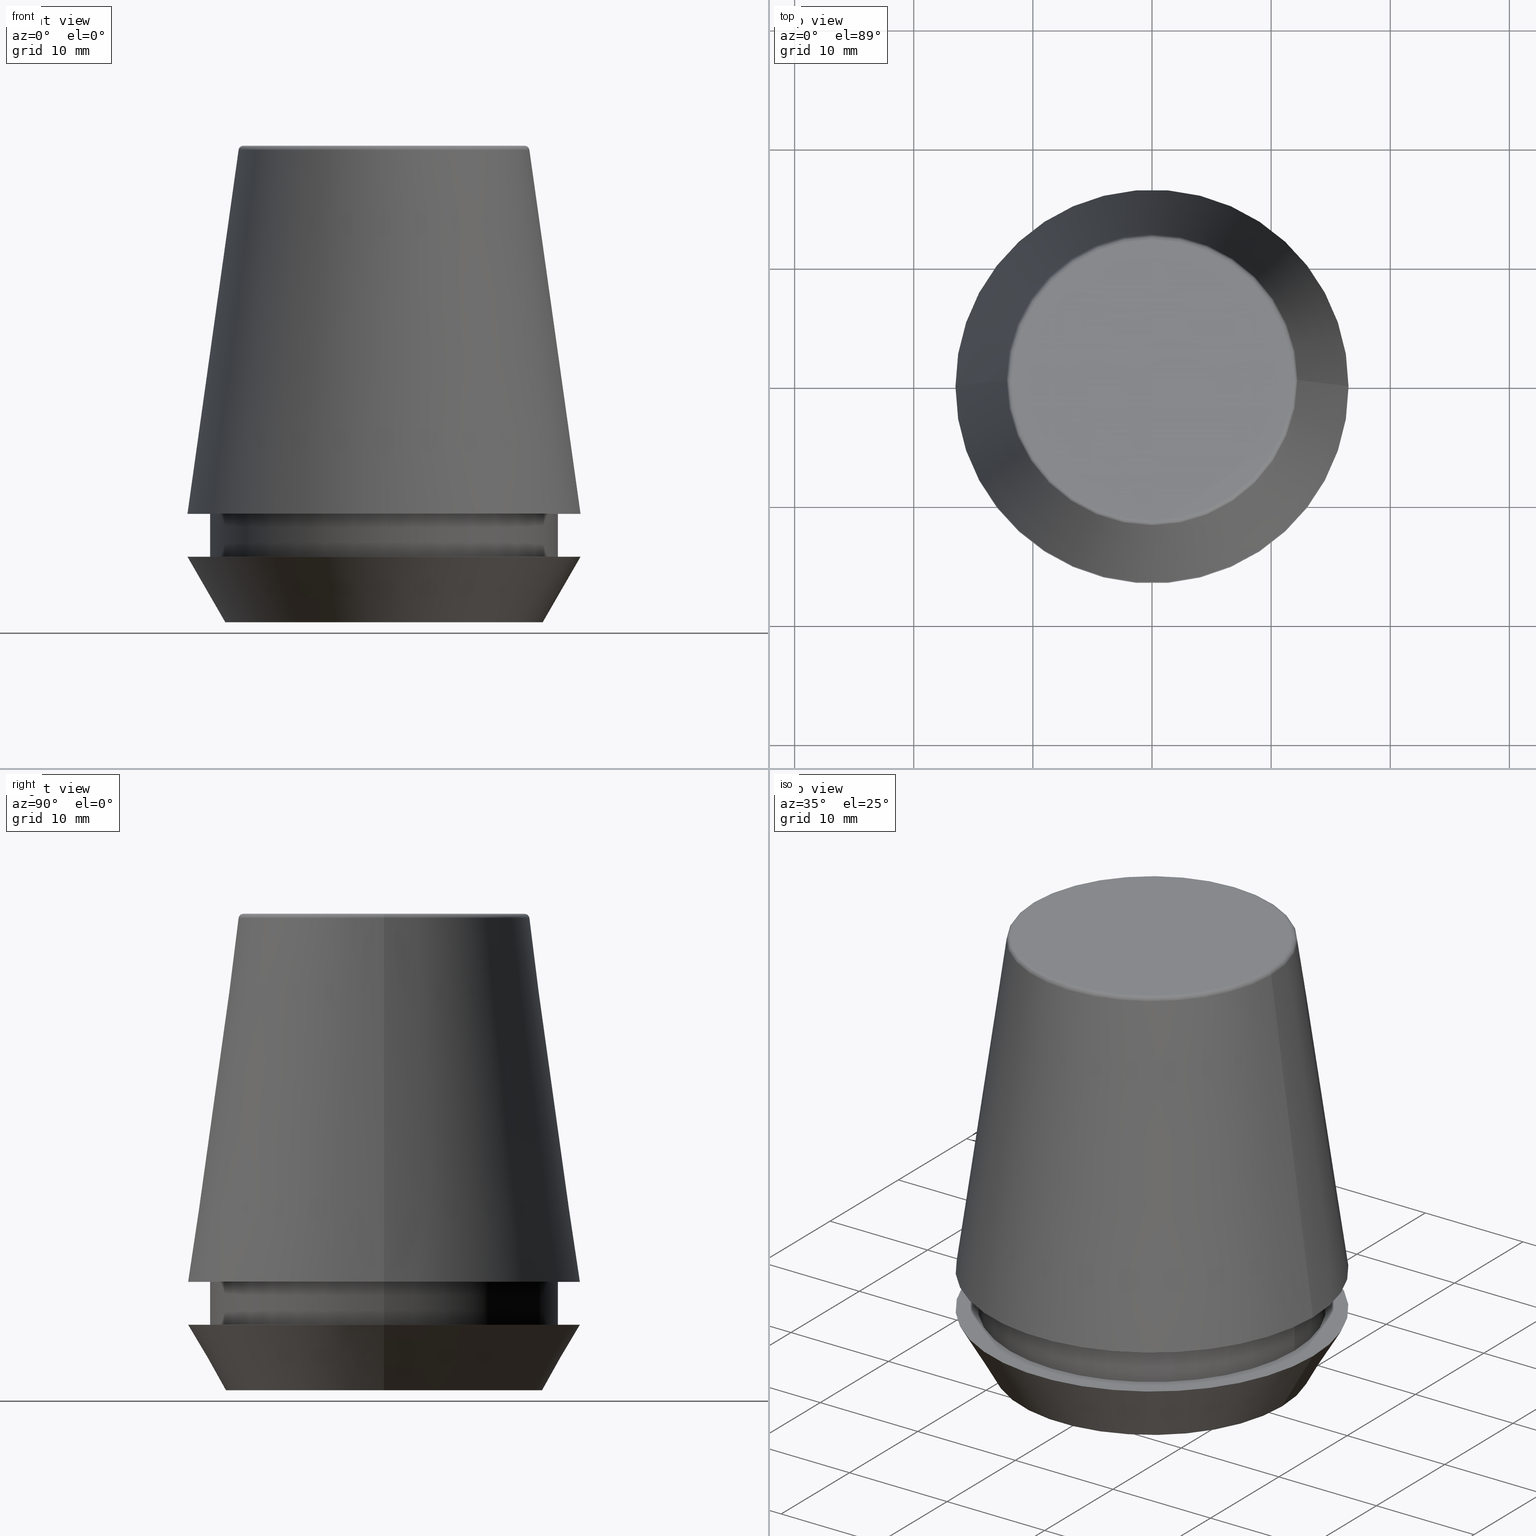
[diagram: canonical four-view strip — front | top / right | iso, engineering-drawing reading convention]
A machine part, canonical four-view strip (front | top / right | iso — engineering-drawing reading convention). The complete STEP part file that produces these views, byte-faithful:
ISO-10303-21;
HEADER;
FILE_DESCRIPTION (( 'STEP AP203' ),
    '1' );
FILE_NAME ('TAP COLLET ER 32G  12.0 X 9.0.STEP',
    '2019-04-09T11:19:56',
    ( '' ),
    ( '' ),
    'SwSTEP 2.0',
    'SolidWorks 2014',
    '' );
FILE_SCHEMA (( 'CONFIG_CONTROL_DESIGN' ));
ENDSEC;

DATA;
#1 = AXIS2_PLACEMENT_3D ( 'NONE', #131, #44, #15 ) ;
#2 = ORIENTED_EDGE ( 'NONE', *, *, #175, .F. ) ;
#3 = DIRECTION ( 'NONE',  ( 1.000000000000000000, 0.0000000000000000000, 0.0000000000000000000 ) ) ;
#4 = DIRECTION ( 'NONE',  ( 1.000000000000000000, 0.0000000000000000000, 0.0000000000000000000 ) ) ;
#5 = TOROIDAL_SURFACE ( 'NONE', #185, 11.80989888411031400, 0.4000000000000026900 ) ;
#6 = DIRECTION ( 'NONE',  ( -1.000000000000000000, 0.0000000000000000000, 0.0000000000000000000 ) ) ;
#7 = ORIENTED_EDGE ( 'NONE', *, *, #155, .T. ) ;
#8 = PERSON_AND_ORGANIZATION ( #40, #190 ) ;
#9 = CONICAL_SURFACE ( 'NONE', #17, 13.32457351945710200, 0.5235987755982927100 ) ;
#10 = DIRECTION ( 'NONE',  ( -0.0000000000000000000, -0.0000000000000000000, 1.000000000000000000 ) ) ;
#11 = ORIENTED_EDGE ( 'NONE', *, *, #55, .T. ) ;
#12 = ADVANCED_FACE ( 'NONE', ( #13 ), #338, .T. ) ;
#13 = FACE_OUTER_BOUND ( 'NONE', #289, .T. ) ;
#14 = CARTESIAN_POINT ( 'NONE',  ( 0.0000000000000000000, 0.0000000000000000000, 0.0000000000000000000 ) ) ;
#15 = DIRECTION ( 'NONE',  ( 1.000000000000000000, 0.0000000000000000000, 0.0000000000000000000 ) ) ;
#16 = DIRECTION ( 'NONE',  ( 0.0000000000000000000, 0.0000000000000000000, 1.000000000000000000 ) ) ;
#17 = AXIS2_PLACEMENT_3D ( 'NONE', #135, #316, #104 ) ;
#18 = PERSON_AND_ORGANIZATION_ROLE ( 'creator' ) ;
#19 = EDGE_CURVE ( 'NONE', #315, #97, #305, .T. ) ;
#20 = ORIENTED_EDGE ( 'NONE', *, *, #64, .T. ) ;
#21 = LINE ( 'NONE', #283, #181 ) ;
#22 = VERTEX_POINT ( 'NONE', #110 ) ;
#23 = CALENDAR_DATE ( 2019, 9, 4 ) ;
#24 = DIRECTION ( 'NONE',  ( -0.0000000000000000000, -0.0000000000000000000, 1.000000000000000000 ) ) ;
#25 = PLANE ( 'NONE',  #243 ) ;
#26 = CARTESIAN_POINT ( 'NONE',  ( 0.0000000000000000000, 0.0000000000000000000, 9.099999999999997900 ) ) ;
#27 = AXIS2_PLACEMENT_3D ( 'NONE', #286, #107, #6 ) ;
#28 = DIRECTION ( 'NONE',  ( 0.0000000000000000000, -0.0000000000000000000, 1.000000000000000000 ) ) ;
#29 = EDGE_LOOP ( 'NONE', ( #41, #351, #336, #356 ) ) ;
#30 = FACE_OUTER_BOUND ( 'NONE', #103, .T. ) ;
#31 = DIRECTION ( 'NONE',  ( 0.0000000000000000000, 0.0000000000000000000, -1.000000000000000000 ) ) ;
#32 = CIRCLE ( 'NONE', #194, 14.60000000000000000 ) ;
#33 = EDGE_CURVE ( 'NONE', #221, #170, #21, .T. ) ;
#34 = ORIENTED_EDGE ( 'NONE', *, *, #192, .F. ) ;
#35 = CC_DESIGN_PERSON_AND_ORGANIZATION_ASSIGNMENT ( #101, #179, ( #85 ) ) ;
#36 = DIRECTION ( 'NONE',  ( -0.0000000000000000000, -0.0000000000000000000, 1.000000000000000000 ) ) ;
#37 = CARTESIAN_POINT ( 'NONE',  ( -16.50000000000000000, 2.020667218593133100E-015, 5.500000000000005300 ) ) ;
#38 = DESIGN_CONTEXT ( 'detailed design', #112, 'design' ) ;
#39 = CONICAL_SURFACE ( 'NONE', #236, 13.32457351945710200, 0.5235987755982927100 ) ;
#40 = PERSON ( 'UNSPECIFIED', 'UNSPECIFIED', 'UNSPECIFIED', ('UNSPECIFIED'), ('UNSPECIFIED'), ('UNSPECIFIED') ) ;
#41 = ORIENTED_EDGE ( 'NONE', *, *, #186, .F. ) ;
#42 = ADVANCED_FACE ( 'NONE', ( #363 ), #9, .T. ) ;
#43 = EDGE_CURVE ( 'NONE', #221, #229, #32, .T. ) ;
#44 = DIRECTION ( 'NONE',  ( -0.0000000000000000000, -0.0000000000000000000, 1.000000000000000000 ) ) ;
#45 = EDGE_CURVE ( 'NONE', #319, #276, #365, .T. ) ;
#46 = ORIENTED_EDGE ( 'NONE', *, *, #277, .T. ) ;
#47 = PERSON_AND_ORGANIZATION_ROLE ( 'design_supplier' ) ;
#48 = FACE_OUTER_BOUND ( 'NONE', #98, .T. ) ;
#49 = CC_DESIGN_PERSON_AND_ORGANIZATION_ASSIGNMENT ( #141, #294, ( #237 ) ) ;
#50 = CALENDAR_DATE ( 2019, 9, 4 ) ;
#51 = CARTESIAN_POINT ( 'NONE',  ( 11.80989888411031400, 0.0000000000000000000, 40.00000000000000700 ) ) ;
#52 = ORIENTED_EDGE ( 'NONE', *, *, #45, .T. ) ;
#53 = DIRECTION ( 'NONE',  ( -0.0000000000000000000, -0.0000000000000000000, 1.000000000000000000 ) ) ;
#54 = DIRECTION ( 'NONE',  ( 1.000000000000000000, 0.0000000000000000000, 0.0000000000000000000 ) ) ;
#55 = EDGE_CURVE ( 'NONE', #315, #387, #287, .T. ) ;
#56 = CARTESIAN_POINT ( 'NONE',  ( 0.0000000000000000000, 16.50032537154048700, 9.099999999999999600 ) ) ;
#57 = CC_DESIGN_DATE_AND_TIME_ASSIGNMENT ( #284, #267, ( #74 ) ) ;
#58 = CARTESIAN_POINT ( 'NONE',  ( 16.50032537154048700, 2.020707065114692300E-015, 9.099999999999997900 ) ) ;
#59 = VECTOR ( 'NONE', #84, 999.9999999999998900 ) ;
#60 = PERSON_AND_ORGANIZATION ( #40, #190 ) ;
#61 = DIRECTION ( 'NONE',  ( 1.000000000000000000, 0.0000000000000000000, 0.0000000000000000000 ) ) ;
#62 = ADVANCED_BREP_SHAPE_REPRESENTATION ( 'TAP COLLET ER 32G  12.0 X 9.0', ( #156, #108 ), #357 ) ;
#63 = FACE_OUTER_BOUND ( 'NONE', #383, .T. ) ;
#64 = EDGE_CURVE ( 'NONE', #76, #273, #360, .T. ) ;
#65 = CARTESIAN_POINT ( 'NONE',  ( 0.0000000000000000000, 0.0000000000000000000, 5.500000000000005300 ) ) ;
#66 = ORIENTED_EDGE ( 'NONE', *, *, #374, .F. ) ;
#67 = EDGE_LOOP ( 'NONE', ( #216, #344 ) ) ;
#68 = CARTESIAN_POINT ( 'NONE',  ( 11.80989888411031400, 0.0000000000000000000, 39.60000000000000100 ) ) ;
#69 = EDGE_CURVE ( 'NONE', #170, #22, #349, .T. ) ;
#70 = CARTESIAN_POINT ( 'NONE',  ( -11.80989888411031400, 1.446295486667959300E-015, 39.60000000000000100 ) ) ;
#71 = CYLINDRICAL_SURFACE ( 'NONE', #222, 14.60000000000000000 ) ;
#72 = ADVANCED_FACE ( 'NONE', ( #30 ), #71, .T. ) ;
#73 = DIRECTION ( 'NONE',  ( -0.0000000000000000000, -0.0000000000000000000, 1.000000000000000000 ) ) ;
#74 = SECURITY_CLASSIFICATION ( '', '', #80 ) ;
#75 = FACE_OUTER_BOUND ( 'NONE', #257, .T. ) ;
#76 = VERTEX_POINT ( 'NONE', #331 ) ;
#77 = ORIENTED_EDGE ( 'NONE', *, *, #155, .F. ) ;
#78 = DIRECTION ( 'NONE',  ( 1.000000000000000000, 0.0000000000000000000, 0.0000000000000000000 ) ) ;
#79 = AXIS2_PLACEMENT_3D ( 'NONE', #14, #73, #324 ) ;
#80 = SECURITY_CLASSIFICATION_LEVEL ( 'unclassified' ) ;
#81 = LINE ( 'NONE', #122, #376 ) ;
#82 = ORIENTED_EDGE ( 'NONE', *, *, #43, .T. ) ;
#83 = PERSON_AND_ORGANIZATION ( #40, #190 ) ;
#84 = DIRECTION ( 'NONE',  ( -0.4999999999999947300, 6.123233995736700700E-017, 0.8660254037844418200 ) ) ;
#85 = PRODUCT_DEFINITION ( 'UNKNOWN', '', #231, #38 ) ;
#86 = CALENDAR_DATE ( 2019, 9, 4 ) ;
#87 = DIRECTION ( 'NONE',  ( 0.0000000000000000000, 0.0000000000000000000, -1.000000000000000000 ) ) ;
#88 = FACE_OUTER_BOUND ( 'NONE', #29, .T. ) ;
#89 = DIRECTION ( 'NONE',  ( 0.0000000000000000000, -0.0000000000000000000, 1.000000000000000000 ) ) ;
#90 = AXIS2_PLACEMENT_3D ( 'NONE', #264, #205, #350 ) ;
#91 = EDGE_CURVE ( 'NONE', #387, #273, #81, .T. ) ;
#92 = PRODUCT_RELATED_PRODUCT_CATEGORY ( 'detail', '', ( #237 ) ) ;
#93 = DIRECTION ( 'NONE',  ( -1.000000000000000000, 0.0000000000000000000, 0.0000000000000000000 ) ) ;
#94 = ORIENTED_EDGE ( 'NONE', *, *, #69, .T. ) ;
#95 = DATE_AND_TIME ( #50, #146 ) ;
#96 = FACE_OUTER_BOUND ( 'NONE', #67, .T. ) ;
#97 = VERTEX_POINT ( 'NONE', #153 ) ;
#98 = EDGE_LOOP ( 'NONE', ( #129, #301 ) ) ;
#99 = EDGE_CURVE ( 'NONE', #22, #170, #254, .T. ) ;
#100 = DIRECTION ( 'NONE',  ( 1.000000000000000000, 0.0000000000000000000, 0.0000000000000000000 ) ) ;
#101 = PERSON_AND_ORGANIZATION ( #40, #190 ) ;
#102 = CONICAL_SURFACE ( 'NONE', #300, 16.50032537154048700, 0.1396263401595395900 ) ;
#103 = EDGE_LOOP ( 'NONE', ( #82, #143, #242, #215 ) ) ;
#104 = DIRECTION ( 'NONE',  ( 1.000000000000000000, 0.0000000000000000000, 0.0000000000000000000 ) ) ;
#105 = CARTESIAN_POINT ( 'NONE',  ( 14.60000000000000000, 0.0000000000000000000, 9.099999999999997900 ) ) ;
#106 = PERSON_AND_ORGANIZATION ( #40, #190 ) ;
#107 = DIRECTION ( 'NONE',  ( 0.0000000000000000000, 0.0000000000000000000, -1.000000000000000000 ) ) ;
#108 = AXIS2_PLACEMENT_3D ( 'NONE', #368, #16, #78 ) ;
#109 = FACE_OUTER_BOUND ( 'NONE', #262, .T. ) ;
#110 = CARTESIAN_POINT ( 'NONE',  ( -14.60000000000000000, 1.787984326755135800E-015, 9.099999999999997900 ) ) ;
#111 = CARTESIAN_POINT ( 'NONE',  ( -12.20600611160694300, 0.0000000000000000000, 39.65566924038402900 ) ) ;
#112 = APPLICATION_CONTEXT ( 'configuration controlled 3d designs of mechanical parts and assemblies' ) ;
#113 = CYLINDRICAL_SURFACE ( 'NONE', #328, 14.60000000000000000 ) ;
#114 = APPROVAL_STATUS ( 'not_yet_approved' ) ;
#115 = ORIENTED_EDGE ( 'NONE', *, *, #33, .T. ) ;
#116 = PERSON_AND_ORGANIZATION ( #40, #190 ) ;
#117 = DATE_AND_TIME ( #245, #278 ) ;
#118 = CARTESIAN_POINT ( 'NONE',  ( 14.60000000000000000, 0.0000000000000000000, 5.500000000000005300 ) ) ;
#119 = ORIENTED_EDGE ( 'NONE', *, *, #277, .F. ) ;
#120 = ORIENTED_EDGE ( 'NONE', *, *, #186, .T. ) ;
#121 = DIRECTION ( 'NONE',  ( -0.0000000000000000000, -0.0000000000000000000, 1.000000000000000000 ) ) ;
#122 = CARTESIAN_POINT ( 'NONE',  ( 16.50032537154048700, 2.020707065114692300E-015, 9.099999999999997900 ) ) ;
#123 = VERTEX_POINT ( 'NONE', #51 ) ;
#124 = EDGE_LOOP ( 'NONE', ( #147, #11, #46, #2 ) ) ;
#125 = CIRCLE ( 'NONE', #199, 11.80989888411031400 ) ;
#126 = DIRECTION ( 'NONE',  ( 1.000000000000000000, 0.0000000000000000000, 0.0000000000000000000 ) ) ;
#127 = FACE_OUTER_BOUND ( 'NONE', #341, .T. ) ;
#128 = APPROVAL_DATE_TIME ( #117, #149 ) ;
#129 = ORIENTED_EDGE ( 'NONE', *, *, #45, .F. ) ;
#130 = EDGE_CURVE ( 'NONE', #229, #221, #223, .T. ) ;
#131 = CARTESIAN_POINT ( 'NONE',  ( 0.0000000000000000000, 0.0000000000000000000, 0.0000000000000000000 ) ) ;
#132 = ORIENTED_EDGE ( 'NONE', *, *, #377, .F. ) ;
#133 = AXIS2_PLACEMENT_3D ( 'NONE', #334, #158, #348 ) ;
#134 = CC_DESIGN_PERSON_AND_ORGANIZATION_ASSIGNMENT ( #106, #18, ( #231 ) ) ;
#135 = CARTESIAN_POINT ( 'NONE',  ( 0.0000000000000000000, 0.0000000000000000000, 0.0000000000000000000 ) ) ;
#136 = ORIENTED_EDGE ( 'NONE', *, *, #238, .F. ) ;
#137 = AXIS2_PLACEMENT_3D ( 'NONE', #70, #280, #169 ) ;
#138 = APPROVAL_STATUS ( 'not_yet_approved' ) ;
#139 = ADVANCED_FACE ( 'NONE', ( #335 ), #150, .T. ) ;
#140 =( LENGTH_UNIT ( ) NAMED_UNIT ( * ) SI_UNIT ( .MILLI., .METRE. ) );
#141 = PERSON_AND_ORGANIZATION ( #40, #190 ) ;
#142 = CARTESIAN_POINT ( 'NONE',  ( 0.0000000000000000000, 0.0000000000000000000, 9.099999999999997900 ) ) ;
#143 = ORIENTED_EDGE ( 'NONE', *, *, #192, .T. ) ;
#144 = ORIENTED_EDGE ( 'NONE', *, *, #362, .T. ) ;
#145 = APPLICATION_PROTOCOL_DEFINITION ( 'international standard', 'config_control_design', 1994, #112 ) ;
#146 = LOCAL_TIME ( 16, 49, 56.00000000000000000, #161 ) ;
#147 = ORIENTED_EDGE ( 'NONE', *, *, #19, .F. ) ;
#148 = CARTESIAN_POINT ( 'NONE',  ( 0.0000000000000000000, 0.0000000000000000000, 9.099999999999997900 ) ) ;
#149 = APPROVAL ( #138, 'UNSPECIFIED' ) ;
#150 = TOROIDAL_SURFACE ( 'NONE', #202, 11.80989888411031400, 0.4000000000000026900 ) ;
#151 = DIRECTION ( 'NONE',  ( -0.0000000000000000000, -0.0000000000000000000, 1.000000000000000000 ) ) ;
#152 = EDGE_CURVE ( 'NONE', #387, #315, #372, .T. ) ;
#153 = CARTESIAN_POINT ( 'NONE',  ( -11.80989888411031400, 1.470550059081603400E-015, 40.00000000000000700 ) ) ;
#154 = LINE ( 'NONE', #234, #224 ) ;
#155 = EDGE_CURVE ( 'NONE', #123, #97, #125, .T. ) ;
#156 = MANIFOLD_SOLID_BREP ( 'Revolve1', #226 ) ;
#157 = ORIENTED_EDGE ( 'NONE', *, *, #130, .F. ) ;
#158 = DIRECTION ( 'NONE',  ( 0.0000000000000000000, 0.0000000000000000000, -1.000000000000000000 ) ) ;
#159 = CARTESIAN_POINT ( 'NONE',  ( -13.32457351945710200, 1.631789631060672300E-015, 0.0000000000000000000 ) ) ;
#160 = CIRCLE ( 'NONE', #232, 16.50000000000000000 ) ;
#161 = COORDINATED_UNIVERSAL_TIME_OFFSET ( 5, 30, .AHEAD. ) ;
#162 = FACE_BOUND ( 'NONE', #177, .T. ) ;
#163 = DIRECTION ( 'NONE',  ( -0.0000000000000000000, -0.0000000000000000000, 1.000000000000000000 ) ) ;
#164 = CC_DESIGN_APPROVAL ( #149, ( #85 ) ) ;
#165 = AXIS2_PLACEMENT_3D ( 'NONE', #217, #28, #61 ) ;
#166 = ORIENTED_EDGE ( 'NONE', *, *, #91, .T. ) ;
#167 = VERTEX_POINT ( 'NONE', #37 ) ;
#168 = LOCAL_TIME ( 16, 49, 56.00000000000000000, #249 ) ;
#169 = DIRECTION ( 'NONE',  ( -1.000000000000000000, 1.224646799147352500E-016, 0.0000000000000000000 ) ) ;
#170 = VERTEX_POINT ( 'NONE', #105 ) ;
#171 = PRODUCT_DEFINITION_SHAPE ( 'NONE', 'NONE',  #85 ) ;
#172 = DIRECTION ( 'NONE',  ( 1.000000000000000000, 0.0000000000000000000, 0.0000000000000000000 ) ) ;
#173 = LINE ( 'NONE', #211, #281 ) ;
#174 = ADVANCED_FACE ( 'NONE', ( #75 ), #5, .T. ) ;
#175 = EDGE_CURVE ( 'NONE', #97, #123, #386, .T. ) ;
#176 = CARTESIAN_POINT ( 'NONE',  ( 12.20600611160694300, 1.757755848304969800E-015, 39.65566924038402900 ) ) ;
#177 = EDGE_LOOP ( 'NONE', ( #187, #157 ) ) ;
#178 =( NAMED_UNIT ( * ) SI_UNIT ( $, .STERADIAN. ) SOLID_ANGLE_UNIT ( ) );
#179 = PERSON_AND_ORGANIZATION_ROLE ( 'creator' ) ;
#180 = ORIENTED_EDGE ( 'NONE', *, *, #99, .F. ) ;
#181 = VECTOR ( 'NONE', #230, 1000.000000000000000 ) ;
#182 = CC_DESIGN_APPROVAL ( #302, ( #74 ) ) ;
#183 = APPROVAL_PERSON_ORGANIZATION ( #312, #250, #235 ) ;
#184 = DIRECTION ( 'NONE',  ( -0.0000000000000000000, -0.0000000000000000000, 1.000000000000000000 ) ) ;
#185 = AXIS2_PLACEMENT_3D ( 'NONE', #200, #36, #358 ) ;
#186 = EDGE_CURVE ( 'NONE', #276, #167, #321, .T. ) ;
#187 = ORIENTED_EDGE ( 'NONE', *, *, #43, .F. ) ;
#188 = DIRECTION ( 'NONE',  ( 0.1391731009600586900, 1.704378926181473100E-017, -0.9902680687415712500 ) ) ;
#189 = AXIS2_PLACEMENT_3D ( 'NONE', #303, #191, #126 ) ;
#190 = ORGANIZATION ( 'UNSPECIFIED', 'UNSPECIFIED', '' ) ;
#191 = DIRECTION ( 'NONE',  ( -0.0000000000000000000, -0.0000000000000000000, 1.000000000000000000 ) ) ;
#192 = EDGE_CURVE ( 'NONE', #229, #22, #378, .T. ) ;
#193 = CC_DESIGN_DATE_AND_TIME_ASSIGNMENT ( #95, #210, ( #85 ) ) ;
#194 = AXIS2_PLACEMENT_3D ( 'NONE', #290, #10, #100 ) ;
#195 = ORIENTED_EDGE ( 'NONE', *, *, #55, .F. ) ;
#196 = CARTESIAN_POINT ( 'NONE',  ( 0.0000000000000000000, 0.0000000000000000000, 101.8074564848000400 ) ) ;
#197 = CARTESIAN_POINT ( 'NONE',  ( -14.60000000000000000, 1.787984326755135800E-015, 101.8074564848000400 ) ) ;
#198 = CIRCLE ( 'NONE', #265, 0.4000000000000045200 ) ;
#199 = AXIS2_PLACEMENT_3D ( 'NONE', #364, #313, #255 ) ;
#200 = CARTESIAN_POINT ( 'NONE',  ( 0.0000000000000000000, 0.0000000000000000000, 39.60000000000000100 ) ) ;
#201 = FACE_OUTER_BOUND ( 'NONE', #256, .T. ) ;
#202 = AXIS2_PLACEMENT_3D ( 'NONE', #241, #24, #381 ) ;
#203 = DIRECTION ( 'NONE',  ( 0.0000000000000000000, 0.0000000000000000000, -1.000000000000000000 ) ) ;
#204 = ADVANCED_FACE ( 'NONE', ( #48 ), #385, .F. ) ;
#205 = DIRECTION ( 'NONE',  ( -0.0000000000000000000, -0.0000000000000000000, 1.000000000000000000 ) ) ;
#206 = DIRECTION ( 'NONE',  ( -0.0000000000000000000, -0.0000000000000000000, 1.000000000000000000 ) ) ;
#207 = AXIS2_PLACEMENT_3D ( 'NONE', #291, #318, #330 ) ;
#208 = ADVANCED_FACE ( 'NONE', ( #63 ), #214, .F. ) ;
#209 = APPLICATION_CONTEXT ( 'configuration controlled 3d designs of mechanical parts and assemblies' ) ;
#210 = DATE_TIME_ROLE ( 'creation_date' ) ;
#211 = CARTESIAN_POINT ( 'NONE',  ( -16.50032537154048700, 0.0000000000000000000, 9.099999999999997900 ) ) ;
#212 = DIRECTION ( 'NONE',  ( 1.000000000000000000, 0.0000000000000000000, 0.0000000000000000000 ) ) ;
#213 = DIRECTION ( 'NONE',  ( 1.000000000000000000, 0.0000000000000000000, 0.0000000000000000000 ) ) ;
#214 = PLANE ( 'NONE',  #133 ) ;
#215 = ORIENTED_EDGE ( 'NONE', *, *, #33, .F. ) ;
#216 = ORIENTED_EDGE ( 'NONE', *, *, #238, .T. ) ;
#217 = CARTESIAN_POINT ( 'NONE',  ( 0.0000000000000000000, 0.0000000000000000000, 0.0000000000000000000 ) ) ;
#218 = COORDINATED_UNIVERSAL_TIME_OFFSET ( 5, 30, .AHEAD. ) ;
#219 = AXIS2_PLACEMENT_3D ( 'NONE', #288, #228, #172 ) ;
#220 = VECTOR ( 'NONE', #163, 1000.000000000000000 ) ;
#221 = VERTEX_POINT ( 'NONE', #118 ) ;
#222 = AXIS2_PLACEMENT_3D ( 'NONE', #240, #342, #355 ) ;
#223 = CIRCLE ( 'NONE', #322, 14.60000000000000000 ) ;
#224 = VECTOR ( 'NONE', #311, 999.9999999999998900 ) ;
#225 = EDGE_LOOP ( 'NONE', ( #94, #359 ) ) ;
#226 = CLOSED_SHELL ( 'NONE', ( #174, #263, #72, #42, #208, #204, #340, #233, #292, #317, #12, #139 ) ) ;
#227 = DIRECTION ( 'NONE',  ( -0.0000000000000000000, -0.0000000000000000000, 1.000000000000000000 ) ) ;
#228 = DIRECTION ( 'NONE',  ( -0.0000000000000000000, -0.0000000000000000000, 1.000000000000000000 ) ) ;
#229 = VERTEX_POINT ( 'NONE', #314 ) ;
#230 = DIRECTION ( 'NONE',  ( -0.0000000000000000000, -0.0000000000000000000, 1.000000000000000000 ) ) ;
#231 = PRODUCT_DEFINITION_FORMATION_WITH_SPECIFIED_SOURCE ( 'ANY', '', #237, .NOT_KNOWN. ) ;
#232 = AXIS2_PLACEMENT_3D ( 'NONE', #332, #299, #384 ) ;
#233 = ADVANCED_FACE ( 'NONE', ( #162, #96 ), #320, .F. ) ;
#234 = CARTESIAN_POINT ( 'NONE',  ( 13.32457351945710200, 0.0000000000000000000, 0.0000000000000000000 ) ) ;
#235 = APPROVAL_ROLE ( '' ) ;
#236 = AXIS2_PLACEMENT_3D ( 'NONE', #298, #121, #54 ) ;
#237 = PRODUCT ( 'TAP COLLET ER 32G  12.0 X 9.0', 'TAP COLLET ER 32G  12.0 X 9.0', '', ( #323 ) ) ;
#238 = EDGE_CURVE ( 'NONE', #379, #167, #160, .T. ) ;
#239 = ORIENTED_EDGE ( 'NONE', *, *, #152, .T. ) ;
#240 = CARTESIAN_POINT ( 'NONE',  ( 0.0000000000000000000, 0.0000000000000000000, 101.8074564848000400 ) ) ;
#241 = CARTESIAN_POINT ( 'NONE',  ( 0.0000000000000000000, 0.0000000000000000000, 39.60000000000000100 ) ) ;
#242 = ORIENTED_EDGE ( 'NONE', *, *, #69, .F. ) ;
#243 = AXIS2_PLACEMENT_3D ( 'NONE', #56, #89, #272 ) ;
#244 = DIRECTION ( 'NONE',  ( 1.000000000000000000, 0.0000000000000000000, 0.0000000000000000000 ) ) ;
#245 = CALENDAR_DATE ( 2019, 9, 4 ) ;
#246 = CIRCLE ( 'NONE', #253, 16.50000000000000000 ) ;
#247 = CIRCLE ( 'NONE', #207, 16.50032537154048700 ) ;
#248 = APPROVAL_DATE_TIME ( #269, #302 ) ;
#249 = COORDINATED_UNIVERSAL_TIME_OFFSET ( 5, 30, .AHEAD. ) ;
#250 = APPROVAL ( #343, 'UNSPECIFIED' ) ;
#251 = EDGE_LOOP ( 'NONE', ( #52, #120, #136, #66 ) ) ;
#252 = CARTESIAN_POINT ( 'NONE',  ( -13.32457351945710200, 1.826228424826902600E-015, 0.0000000000000000000 ) ) ;
#253 = AXIS2_PLACEMENT_3D ( 'NONE', #65, #227, #3 ) ;
#254 = CIRCLE ( 'NONE', #270, 14.60000000000000000 ) ;
#255 = DIRECTION ( 'NONE',  ( 1.000000000000000000, 0.0000000000000000000, 0.0000000000000000000 ) ) ;
#256 = EDGE_LOOP ( 'NONE', ( #310, #326 ) ) ;
#257 = EDGE_LOOP ( 'NONE', ( #239, #382, #77, #119 ) ) ;
#258 =( NAMED_UNIT ( * ) PLANE_ANGLE_UNIT ( ) SI_UNIT ( $, .RADIAN. ) );
#259 = APPROVAL_DATE_TIME ( #285, #250 ) ;
#260 = DIRECTION ( 'NONE',  ( -0.1391731009600586900, 0.0000000000000000000, -0.9902680687415712500 ) ) ;
#261 = CARTESIAN_POINT ( 'NONE',  ( 13.32457351945710200, 0.0000000000000000000, 0.0000000000000000000 ) ) ;
#262 = EDGE_LOOP ( 'NONE', ( #34, #271, #115, #180 ) ) ;
#263 = ADVANCED_FACE ( 'NONE', ( #127 ), #102, .T. ) ;
#264 = CARTESIAN_POINT ( 'NONE',  ( 0.0000000000000000000, 0.0000000000000000000, 39.65566924038402900 ) ) ;
#265 = AXIS2_PLACEMENT_3D ( 'NONE', #68, #279, #31 ) ;
#266 = APPLICATION_PROTOCOL_DEFINITION ( 'international standard', 'config_control_design', 1994, #209 ) ;
#267 = DATE_TIME_ROLE ( 'classification_date' ) ;
#268 = CC_DESIGN_APPROVAL ( #250, ( #231 ) ) ;
#269 = DATE_AND_TIME ( #380, #361 ) ;
#270 = AXIS2_PLACEMENT_3D ( 'NONE', #148, #184, #212 ) ;
#271 = ORIENTED_EDGE ( 'NONE', *, *, #130, .T. ) ;
#272 = DIRECTION ( 'NONE',  ( 1.000000000000000000, 0.0000000000000000000, 0.0000000000000000000 ) ) ;
#273 = VERTEX_POINT ( 'NONE', #58 ) ;
#274 = CARTESIAN_POINT ( 'NONE',  ( 0.0000000000000000000, 0.0000000000000000000, 9.099999999999997900 ) ) ;
#275 = CARTESIAN_POINT ( 'NONE',  ( 16.50000000000000000, 0.0000000000000000000, 5.500000000000005300 ) ) ;
#276 = VERTEX_POINT ( 'NONE', #252 ) ;
#277 = EDGE_CURVE ( 'NONE', #387, #123, #198, .T. ) ;
#278 = LOCAL_TIME ( 16, 49, 56.00000000000000000, #333 ) ;
#279 = DIRECTION ( 'NONE',  ( 0.0000000000000000000, -1.000000000000000000, 0.0000000000000000000 ) ) ;
#280 = DIRECTION ( 'NONE',  ( 1.224646799147353200E-016, 1.000000000000000000, 0.0000000000000000000 ) ) ;
#281 = VECTOR ( 'NONE', #260, 1000.000000000000000 ) ;
#282 = DIRECTION ( 'NONE',  ( 1.000000000000000000, 0.0000000000000000000, 0.0000000000000000000 ) ) ;
#283 = CARTESIAN_POINT ( 'NONE',  ( 14.60000000000000000, 0.0000000000000000000, 101.8074564848000400 ) ) ;
#284 = DATE_AND_TIME ( #23, #327 ) ;
#285 = DATE_AND_TIME ( #86, #168 ) ;
#286 = CARTESIAN_POINT ( 'NONE',  ( 0.0000000000000000000, 0.0000000000000000000, 9.099999999999997900 ) ) ;
#287 = CIRCLE ( 'NONE', #90, 12.20600611160694300 ) ;
#288 = CARTESIAN_POINT ( 'NONE',  ( 0.0000000000000000000, 0.0000000000000000000, 39.65566924038402900 ) ) ;
#289 = EDGE_LOOP ( 'NONE', ( #366, #195, #347, #20 ) ) ;
#290 = CARTESIAN_POINT ( 'NONE',  ( 0.0000000000000000000, 0.0000000000000000000, 5.500000000000005300 ) ) ;
#291 = CARTESIAN_POINT ( 'NONE',  ( 0.0000000000000000000, 0.0000000000000000000, 9.099999999999997900 ) ) ;
#292 = ADVANCED_FACE ( 'NONE', ( #109 ), #113, .T. ) ;
#293 = DIRECTION ( 'NONE',  ( -0.0000000000000000000, -0.0000000000000000000, 1.000000000000000000 ) ) ;
#294 = PERSON_AND_ORGANIZATION_ROLE ( 'design_owner' ) ;
#295 = APPROVAL_PERSON_ORGANIZATION ( #60, #149, #373 ) ;
#296 = APPROVAL_PERSON_ORGANIZATION ( #83, #302, #297 ) ;
#297 = APPROVAL_ROLE ( '' ) ;
#298 = CARTESIAN_POINT ( 'NONE',  ( 0.0000000000000000000, 0.0000000000000000000, 0.0000000000000000000 ) ) ;
#299 = DIRECTION ( 'NONE',  ( -0.0000000000000000000, -0.0000000000000000000, 1.000000000000000000 ) ) ;
#300 = AXIS2_PLACEMENT_3D ( 'NONE', #26, #87, #93 ) ;
#301 = ORIENTED_EDGE ( 'NONE', *, *, #371, .F. ) ;
#302 = APPROVAL ( #114, 'UNSPECIFIED' ) ;
#303 = CARTESIAN_POINT ( 'NONE',  ( 0.0000000000000000000, 0.0000000000000000000, 40.00000000000000700 ) ) ;
#304 = DIRECTION ( 'NONE',  ( -1.000000000000000000, 0.0000000000000000000, -0.0000000000000000000 ) ) ;
#305 = CIRCLE ( 'NONE', #137, 0.4000000000000028000 ) ;
#306 = ORIENTED_EDGE ( 'NONE', *, *, #152, .F. ) ;
#307 = EDGE_CURVE ( 'NONE', #167, #379, #246, .T. ) ;
#308 = CC_DESIGN_SECURITY_CLASSIFICATION ( #74, ( #231 ) ) ;
#309 = CARTESIAN_POINT ( 'NONE',  ( 0.0000000000000000000, 16.50000000000000000, 5.500000000000002700 ) ) ;
#310 = ORIENTED_EDGE ( 'NONE', *, *, #64, .F. ) ;
#311 = DIRECTION ( 'NONE',  ( 0.4999999999999947300, 0.0000000000000000000, 0.8660254037844418200 ) ) ;
#312 = PERSON_AND_ORGANIZATION ( #40, #190 ) ;
#313 = DIRECTION ( 'NONE',  ( -0.0000000000000000000, -0.0000000000000000000, 1.000000000000000000 ) ) ;
#314 = CARTESIAN_POINT ( 'NONE',  ( -14.60000000000000000, 1.787984326755135800E-015, 5.500000000000005300 ) ) ;
#315 = VERTEX_POINT ( 'NONE', #111 ) ;
#316 = DIRECTION ( 'NONE',  ( -0.0000000000000000000, -0.0000000000000000000, 1.000000000000000000 ) ) ;
#317 = ADVANCED_FACE ( 'NONE', ( #201, #370 ), #25, .F. ) ;
#318 = DIRECTION ( 'NONE',  ( -0.0000000000000000000, -0.0000000000000000000, 1.000000000000000000 ) ) ;
#319 = VERTEX_POINT ( 'NONE', #261 ) ;
#320 = PLANE ( 'NONE',  #346 ) ;
#321 = LINE ( 'NONE', #159, #59 ) ;
#322 = AXIS2_PLACEMENT_3D ( 'NONE', #329, #53, #282 ) ;
#323 = MECHANICAL_CONTEXT ( 'NONE', #209, 'mechanical' ) ;
#324 = DIRECTION ( 'NONE',  ( 1.000000000000000000, 0.0000000000000000000, 0.0000000000000000000 ) ) ;
#325 = PERSON_AND_ORGANIZATION_ROLE ( 'classification_officer' ) ;
#326 = ORIENTED_EDGE ( 'NONE', *, *, #362, .F. ) ;
#327 = LOCAL_TIME ( 16, 49, 56.00000000000000000, #337 ) ;
#328 = AXIS2_PLACEMENT_3D ( 'NONE', #196, #206, #244 ) ;
#329 = CARTESIAN_POINT ( 'NONE',  ( 0.0000000000000000000, 0.0000000000000000000, 5.500000000000005300 ) ) ;
#330 = DIRECTION ( 'NONE',  ( 1.000000000000000000, 0.0000000000000000000, 0.0000000000000000000 ) ) ;
#331 = CARTESIAN_POINT ( 'NONE',  ( -16.50032537154048700, 0.0000000000000000000, 9.099999999999997900 ) ) ;
#332 = CARTESIAN_POINT ( 'NONE',  ( 0.0000000000000000000, 0.0000000000000000000, 5.500000000000005300 ) ) ;
#333 = COORDINATED_UNIVERSAL_TIME_OFFSET ( 5, 30, .AHEAD. ) ;
#334 = CARTESIAN_POINT ( 'NONE',  ( 0.0000000000000000000, 11.80989888411031400, 40.00000000000000700 ) ) ;
#335 = FACE_OUTER_BOUND ( 'NONE', #124, .T. ) ;
#336 = ORIENTED_EDGE ( 'NONE', *, *, #374, .T. ) ;
#337 = COORDINATED_UNIVERSAL_TIME_OFFSET ( 5, 30, .AHEAD. ) ;
#338 = CONICAL_SURFACE ( 'NONE', #27, 16.50032537154048700, 0.1396263401595395900 ) ;
#339 = ORIENTED_EDGE ( 'NONE', *, *, #175, .T. ) ;
#340 = ADVANCED_FACE ( 'NONE', ( #88 ), #39, .T. ) ;
#341 = EDGE_LOOP ( 'NONE', ( #306, #166, #144, #132 ) ) ;
#342 = DIRECTION ( 'NONE',  ( -0.0000000000000000000, -0.0000000000000000000, 1.000000000000000000 ) ) ;
#343 = APPROVAL_STATUS ( 'not_yet_approved' ) ;
#344 = ORIENTED_EDGE ( 'NONE', *, *, #307, .T. ) ;
#345 = CC_DESIGN_PERSON_AND_ORGANIZATION_ASSIGNMENT ( #116, #325, ( #74 ) ) ;
#346 = AXIS2_PLACEMENT_3D ( 'NONE', #309, #203, #304 ) ;
#347 = ORIENTED_EDGE ( 'NONE', *, *, #377, .T. ) ;
#348 = DIRECTION ( 'NONE',  ( -1.000000000000000000, 0.0000000000000000000, -0.0000000000000000000 ) ) ;
#349 = CIRCLE ( 'NONE', #352, 14.60000000000000000 ) ;
#350 = DIRECTION ( 'NONE',  ( 1.000000000000000000, 0.0000000000000000000, 0.0000000000000000000 ) ) ;
#351 = ORIENTED_EDGE ( 'NONE', *, *, #371, .T. ) ;
#352 = AXIS2_PLACEMENT_3D ( 'NONE', #274, #151, #213 ) ;
#353 = UNCERTAINTY_MEASURE_WITH_UNIT (LENGTH_MEASURE( 1.000000000000000100E-005 ), #140, 'distance_accuracy_value', 'NONE');
#354 = CIRCLE ( 'NONE', #1, 13.32457351945710200 ) ;
#355 = DIRECTION ( 'NONE',  ( 1.000000000000000000, 0.0000000000000000000, 0.0000000000000000000 ) ) ;
#356 = ORIENTED_EDGE ( 'NONE', *, *, #307, .F. ) ;
#357 =( GEOMETRIC_REPRESENTATION_CONTEXT ( 3 ) GLOBAL_UNCERTAINTY_ASSIGNED_CONTEXT ( ( #353 ) ) GLOBAL_UNIT_ASSIGNED_CONTEXT ( ( #140, #258, #178 ) ) REPRESENTATION_CONTEXT ( 'NONE', 'WORKASPACE' ) );
#358 = DIRECTION ( 'NONE',  ( 1.000000000000000000, 0.0000000000000000000, 0.0000000000000000000 ) ) ;
#359 = ORIENTED_EDGE ( 'NONE', *, *, #99, .T. ) ;
#360 = CIRCLE ( 'NONE', #367, 16.50032537154048700 ) ;
#361 = LOCAL_TIME ( 16, 49, 56.00000000000000000, #218 ) ;
#362 = EDGE_CURVE ( 'NONE', #273, #76, #247, .T. ) ;
#363 = FACE_OUTER_BOUND ( 'NONE', #251, .T. ) ;
#364 = CARTESIAN_POINT ( 'NONE',  ( 0.0000000000000000000, 0.0000000000000000000, 40.00000000000000700 ) ) ;
#365 = CIRCLE ( 'NONE', #79, 13.32457351945710200 ) ;
#366 = ORIENTED_EDGE ( 'NONE', *, *, #91, .F. ) ;
#367 = AXIS2_PLACEMENT_3D ( 'NONE', #142, #293, #4 ) ;
#368 = CARTESIAN_POINT ( 'NONE',  ( 0.0000000000000000000, 0.0000000000000000000, 0.0000000000000000000 ) ) ;
#369 = SHAPE_DEFINITION_REPRESENTATION ( #171, #62 ) ;
#370 = FACE_BOUND ( 'NONE', #225, .T. ) ;
#371 = EDGE_CURVE ( 'NONE', #276, #319, #354, .T. ) ;
#372 = CIRCLE ( 'NONE', #219, 12.20600611160694300 ) ;
#373 = APPROVAL_ROLE ( '' ) ;
#374 = EDGE_CURVE ( 'NONE', #319, #379, #154, .T. ) ;
#375 = CC_DESIGN_PERSON_AND_ORGANIZATION_ASSIGNMENT ( #8, #47, ( #231 ) ) ;
#376 = VECTOR ( 'NONE', #188, 1000.000000000000000 ) ;
#377 = EDGE_CURVE ( 'NONE', #315, #76, #173, .T. ) ;
#378 = LINE ( 'NONE', #197, #220 ) ;
#379 = VERTEX_POINT ( 'NONE', #275 ) ;
#380 = CALENDAR_DATE ( 2019, 9, 4 ) ;
#381 = DIRECTION ( 'NONE',  ( 1.000000000000000000, 0.0000000000000000000, 0.0000000000000000000 ) ) ;
#382 = ORIENTED_EDGE ( 'NONE', *, *, #19, .T. ) ;
#383 = EDGE_LOOP ( 'NONE', ( #7, #339 ) ) ;
#384 = DIRECTION ( 'NONE',  ( 1.000000000000000000, 0.0000000000000000000, 0.0000000000000000000 ) ) ;
#385 = PLANE ( 'NONE',  #165 ) ;
#386 = CIRCLE ( 'NONE', #189, 11.80989888411031400 ) ;
#387 = VERTEX_POINT ( 'NONE', #176 ) ;
ENDSEC;
END-ISO-10303-21;
